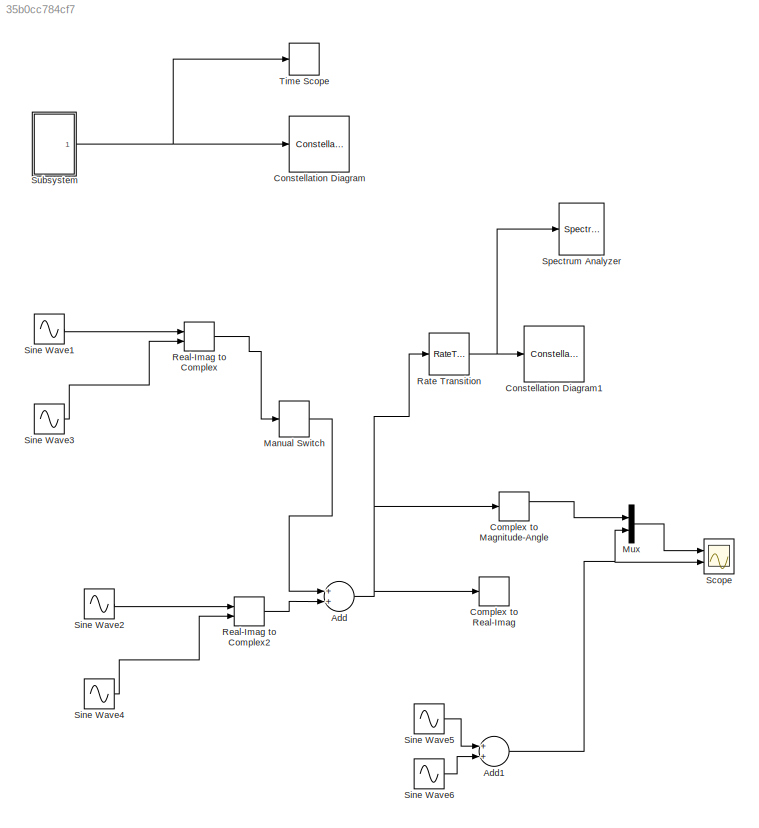
MODEL slx_35b0cc784cf7
KIND model
CONFIG PreLoadFcn = iqSampTime = 0.0000000025;\n\niqFreq = 40000000;\niqSpread = 3000000*2*pi;
BLOCK [Sum] Add
  InputSameDT = off
  OutDataTypeStr = Inherit: Inherit via internal rule
  Ports = [2, 1]
  SaturateOnIntegerOverflow = off
BLOCK [Sum] Add1
  InputSameDT = off
  OutDataTypeStr = Inherit: Inherit via internal rule
  Ports = [2, 1]
  SaturateOnIntegerOverflow = off
BLOCK [ComplexToMagnitudeAngle] Complex to Magnitude-Angle
  Ports = [1, 2]
BLOCK [ComplexToRealImag] Complex to Real-Imag
  Ports = [1, 2]
BLOCK [ConstellationDiagram] Constellation Diagram
  Commented = on
  Ports = [1]
  ScopeSpecificationString = comm.scopes.ConstellationDiagramBlockCfg('CurrentConfiguration', extmgr.ConfigurationSet(extmgr.Configuration('Core','General UI',true),extmgr.Configuration('Core','Source UI',true),extmgr.Configuration('Sources','WiredSimulink',true),extmgr.Configuration('Sources','Simulink',false),extmgr.Configuration('Sources','File',false),extmgr.Configuration('Sources','Workspace',false),extmgr.Configuration(...<+1662ch>
BLOCK [ConstellationDiagram] Constellation Diagram1
  Ports = [1]
  ScopeSpecificationString = comm.scopes.ConstellationDiagramBlockCfg('CurrentConfiguration', extmgr.ConfigurationSet(extmgr.Configuration('Core','General UI',true),extmgr.Configuration('Core','Source UI',true),extmgr.Configuration('Sources','WiredSimulink',true),extmgr.Configuration('Sources','Simulink',false),extmgr.Configuration('Sources','File',false),extmgr.Configuration('Sources','Workspace',false),extmgr.Configuration(...<+1759ch>
BLOCK [ManualSwitch] Manual Switch
BLOCK [Mux] Mux
  DisplayOption = bar
  Inputs = 2
  Ports = [2, 1]
BLOCK [RateTransition] Rate Transition
  OutPortSampleTime = iqSampTime
BLOCK [RealImagToComplex] Real-Imag to Complex
  Ports = [2, 1]
BLOCK [RealImagToComplex] Real-Imag to Complex2
  Ports = [2, 1]
BLOCK [Scope] Scope
  Floating = off
  MaxDataPoints = 100000
  NumInputPorts = 2
  Ports = [2]
  SaveName = ScopeData1
  ShowLegends = off
  TimeRange = 1e-05
  YMax = 2~4
  YMin = 0~-4
BLOCK [Sin] Sine Wave1
  Frequency = iqSpread
  Phase = pi/2
  Ports = [0, 1]
BLOCK [Sin] Sine Wave2
  Frequency = iqSpread+900000
  Phase = pi/2
  Ports = [0, 1]
BLOCK [Sin] Sine Wave3
  Frequency = iqSpread
  Ports = [0, 1]
BLOCK [Sin] Sine Wave4
  Frequency = iqSpread+900000
  Ports = [0, 1]
BLOCK [Sin] Sine Wave5
  Frequency = iqSpread
  Ports = [0, 1]
BLOCK [Sin] Sine Wave6
  Frequency = iqSpread+900000
  Ports = [0, 1]
BLOCK [SpectrumAnalyzer] Spectrum Analyzer
  Ports = [1]
  ScopeSpecificationString = spbscopes.SpectrumAnalyzerBlockCfg('CurrentConfiguration', extmgr.ConfigurationSet(extmgr.Configuration('Core','General UI',true),extmgr.Configuration('Core','Source UI',true),extmgr.Configuration('Sources','WiredSimulink',true),extmgr.Configuration('Visuals','Spectrum',true,'AxesProperties',struct('Color',[0 0 0],'XColor',[0.686274509803922 0.686274509803922 0.686274509803922],'YColor',[0.6862745...<+6511ch>
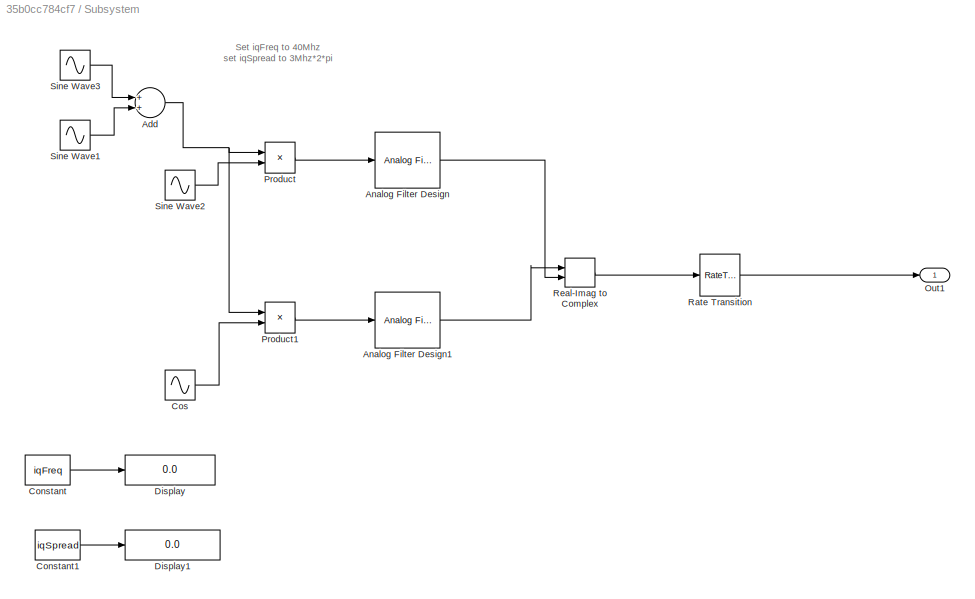
BLOCK [SubSystem] Subsystem
  Commented = on
  Ports = [0, 1]
  RequestExecContextInheritance = off
BLOCK [Sum] Subsystem/Add
  InputSameDT = off
  OutDataTypeStr = Inherit: Inherit via internal rule
  Ports = [2, 1]
  SaturateOnIntegerOverflow = off
BLOCK [Reference] Subsystem/Analog Filter Design  REF=dsparch4/Analog
Filter Design
  N = 32
  Ports = [1, 1]
  Rp = 2
  Rs = 40
  SourceBlock = dsparch4/Analog\nFilter Design
  SourceType = Analog Filter Design
  Whi = 80
  Wlo = iqSpread
  filttype = Lowpass
  method = Butterworth
BLOCK [Reference] Subsystem/Analog Filter Design1  REF=dsparch4/Analog
Filter Design
  N = 32
  Ports = [1, 1]
  Rp = 2
  Rs = 40
  SourceBlock = dsparch4/Analog\nFilter Design
  SourceType = Analog Filter Design
  Whi = 80
  Wlo = iqSpread
  filttype = Lowpass
  method = Butterworth
BLOCK [Constant] Subsystem/Constant
  Value = iqFreq
BLOCK [Constant] Subsystem/Constant1
  Value = iqSpread
BLOCK [Sin] Subsystem/Cos 
  Frequency = iqFreq
  Phase = -1*pi/2
  Ports = [0, 1]
BLOCK [Display] Subsystem/Display
  Decimation = 1
  Format = decimal (Stored Integer)
  Ports = [1]
BLOCK [Display] Subsystem/Display1
  Decimation = 1
  Format = decimal (Stored Integer)
  Ports = [1]
BLOCK [Outport] Subsystem/Out1
  IconDisplay = Port number
BLOCK [Product] Subsystem/Product
  InputSameDT = off
  OutDataTypeStr = Inherit: Inherit via internal rule
  Ports = [2, 1]
  RndMeth = Floor
  SaturateOnIntegerOverflow = off
BLOCK [Product] Subsystem/Product1
  InputSameDT = off
  OutDataTypeStr = Inherit: Inherit via internal rule
  Ports = [2, 1]
  RndMeth = Floor
  SaturateOnIntegerOverflow = off
BLOCK [RateTransition] Subsystem/Rate Transition
  OutPortSampleTime = iqSampTime
BLOCK [RealImagToComplex] Subsystem/Real-Imag to Complex
  Ports = [2, 1]
BLOCK [Sin] Subsystem/Sine Wave1
  Frequency = iqFreq - iqSpread
  Ports = [0, 1]
BLOCK [Sin] Subsystem/Sine Wave2
  Frequency = iqFreq
  Ports = [0, 1]
BLOCK [Sin] Subsystem/Sine Wave3
  Frequency = iqFreq + iqSpread
  Ports = [0, 1]
BLOCK [TimeScope] Time Scope
  Commented = on
  DefaultConfigurationName = spbscopes.TimeScopeBlockCfg
  NumInputPorts = 1
  Ports = [1]
  ScopeSpecificationString = spbscopes.TimeScopeBlockCfg('CurrentConfiguration', extmgr.ConfigurationSet(extmgr.Configuration('Core','General UI',true),extmgr.Configuration('Core','Source UI',true),extmgr.Configuration('Sources','WiredSimulink',true,'DataLoggingVariableName','ScopeData1'),extmgr.Configuration('Visuals','Time Domain',true,'DisplayPropertyDefaults',struct('MinYLimReal','-2.43916','MaxYLimReal','2.43284','YLabel...<+1408ch>
  UserDataPersistent = on
ANNOTATION Subsystem: Set iqFreq to 40Mhz set iqSpread to 3Mhz*2*pi
NET Add1:1 -> Mux:2, Scope:2
NET Add:1 -> Complex to Magnitude-Angle:1, Complex to Real-Imag:1, Rate Transition:1
LINE Complex to Magnitude-Angle:1 -> Mux:1
LINE Manual Switch:1 -> Add:1
LINE Mux:1 -> Scope:1
NET Rate Transition:1 -> Constellation Diagram1:1, Spectrum Analyzer:1
LINE Real-Imag to Complex2:1 -> Add:2
LINE Real-Imag to Complex:1 -> Manual Switch:1
LINE Sine Wave1:1 -> Real-Imag to Complex:1
LINE Sine Wave2:1 -> Real-Imag to Complex2:1
LINE Sine Wave3:1 -> Real-Imag to Complex:2
LINE Sine Wave4:1 -> Real-Imag to Complex2:2
LINE Sine Wave5:1 -> Add1:1
LINE Sine Wave6:1 -> Add1:2
NET Subsystem/Add:1 -> Subsystem/Product1:1, Subsystem/Product:1
LINE Subsystem/Analog Filter Design1:1 -> Subsystem/Real-Imag to Complex:1
LINE Subsystem/Analog Filter Design:1 -> Subsystem/Real-Imag to Complex:2
LINE Subsystem/Constant1:1 -> Subsystem/Display1:1
LINE Subsystem/Constant:1 -> Subsystem/Display:1
LINE Subsystem/Cos :1 -> Subsystem/Product1:2
LINE Subsystem/Product1:1 -> Subsystem/Analog Filter Design1:1
LINE Subsystem/Product:1 -> Subsystem/Analog Filter Design:1
LINE Subsystem/Rate Transition:1 -> Subsystem/Out1:1
LINE Subsystem/Real-Imag to Complex:1 -> Subsystem/Rate Transition:1
LINE Subsystem/Sine Wave1:1 -> Subsystem/Add:2
LINE Subsystem/Sine Wave2:1 -> Subsystem/Product:2
LINE Subsystem/Sine Wave3:1 -> Subsystem/Add:1
NET Subsystem:1 -> Constellation Diagram:1, Time Scope:1
note: NET lines group one-source signal fan-out (src -> all destinations, sorted); 1:1 wires keep LINE
